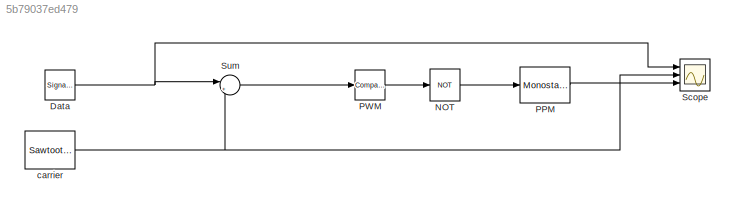
MODEL slx_5b79037ed479
KIND model
CONFIG AbsTol = auto
CONFIG EnableMultiTasking = off
CONFIG FixedStep = auto
CONFIG MaxStep = auto
CONFIG MinStep = auto
CONFIG RelTol = 1e-3
CONFIG SampleTimeConstraint = Unconstrained
CONFIG SolverName = VariableStepAuto
CONFIG StartTime = 0.0
CONFIG StopTime = 10.0
BLOCK [SignalGenerator] Data
  Amplitude = 0.9
  Ports = [0, 1]
  Units = rad/sec
BLOCK [Logic] NOT
  AllPortsSameDT = off
  IconShape = distinctive
  Operator = NOT
  OutDataTypeStr = boolean
  Ports = [1, 1]
BLOCK [Reference] PPM  REF=powerlib_meascontrol/Logic/Monostable
  Ports = [1, 1]
  SourceBlock = powerlib_meascontrol/Logic/Monostable
  SourceProductBaseCode = PS
  SourceType = Monostable
BLOCK [Reference] PWM  REF=simulink/Logic and Bit
Operations/Compare
To Zero
  Ports = [1, 1]
  SourceBlock = simulink/Logic and Bit\nOperations/Compare\nTo Zero
  SourceProductBaseCode = SL
  SourceType = Compare To Zero
BLOCK [Scope] Scope
  Floating = off
  NumInputPorts = 3
  Ports = [3]
  ScopeSpecificationString = Simulink.scopes.TimeScopeBlockCfg('CurrentConfiguration', extmgr.ConfigurationSet(extmgr.Configuration('Core','General UI',true),extmgr.Configuration('Core','Source UI',true),extmgr.Configuration('Sources','WiredSimulink',true),extmgr.Configuration('Visuals','Time Domain',true,'SerializedDisplays',{struct('MinYLimReal','-1.1248','MaxYLimReal','1.12392','YLabelReal','','MinYLimMag','0.00000','MaxYL...<+2666ch>
BLOCK [Sum] Sum
  Inputs = |+-
  Ports = [2, 1]
BLOCK [Reference] carrier  REF=powerlib_meascontrol/Pulse & Signal
Generators/Sawtooth
Generator
  Ports = [0, 1]
  SourceBlock = powerlib_meascontrol/Pulse & Signal\nGenerators/Sawtooth\nGenerator
  SourceProductBaseCode = PS
  SourceType = Sawtooth Generator
NET Data:1 -> Scope:1, Sum:1
LINE NOT:1 -> PPM:1
LINE PPM:1 -> Scope:3
LINE PWM:1 -> NOT:1
LINE Sum:1 -> PWM:1
NET carrier:1 -> Scope:2, Sum:2
note: NET lines group one-source signal fan-out (src -> all destinations, sorted); 1:1 wires keep LINE
